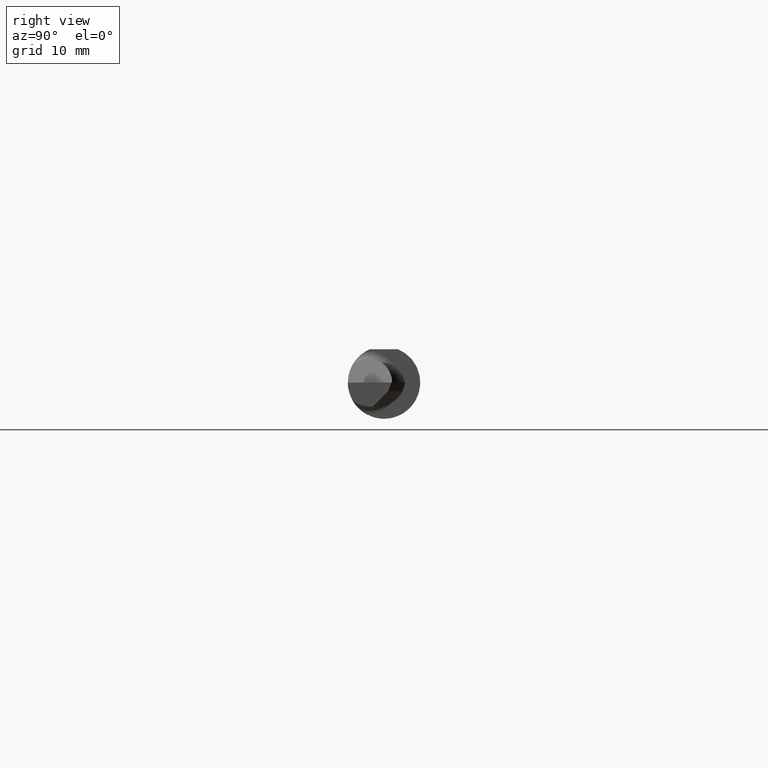
[diagram: clean part render]
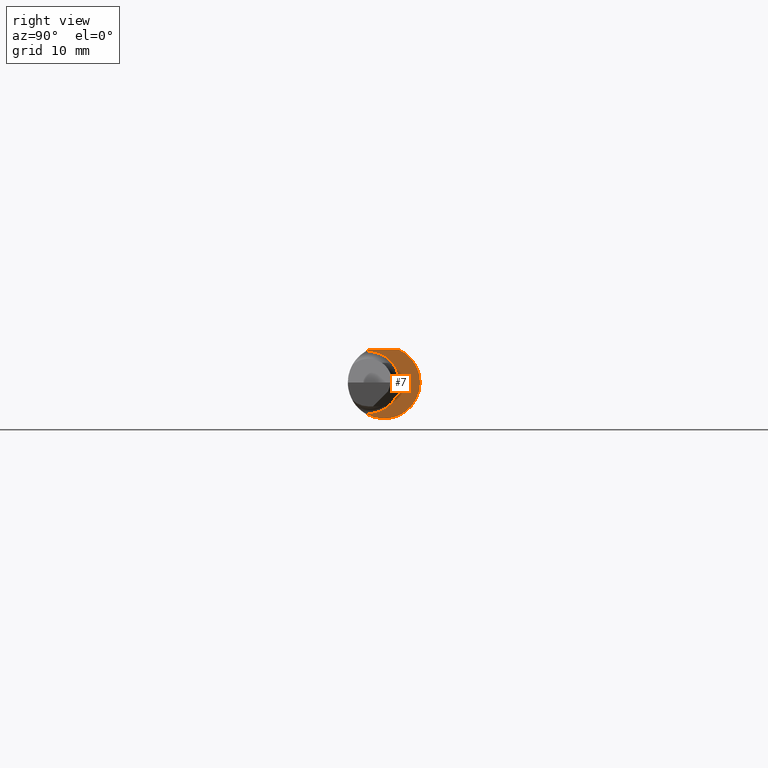
[diagram: same view with one face highlighted and labeled with its STEP entity id]
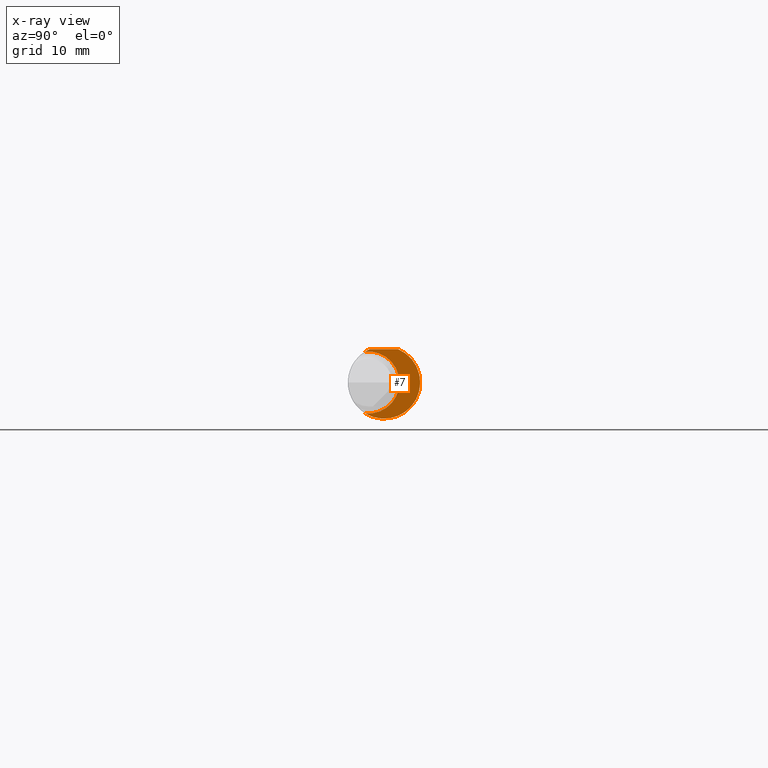
[diagram: x-ray of the same camera — body ghosted, the highlighted face saturated]
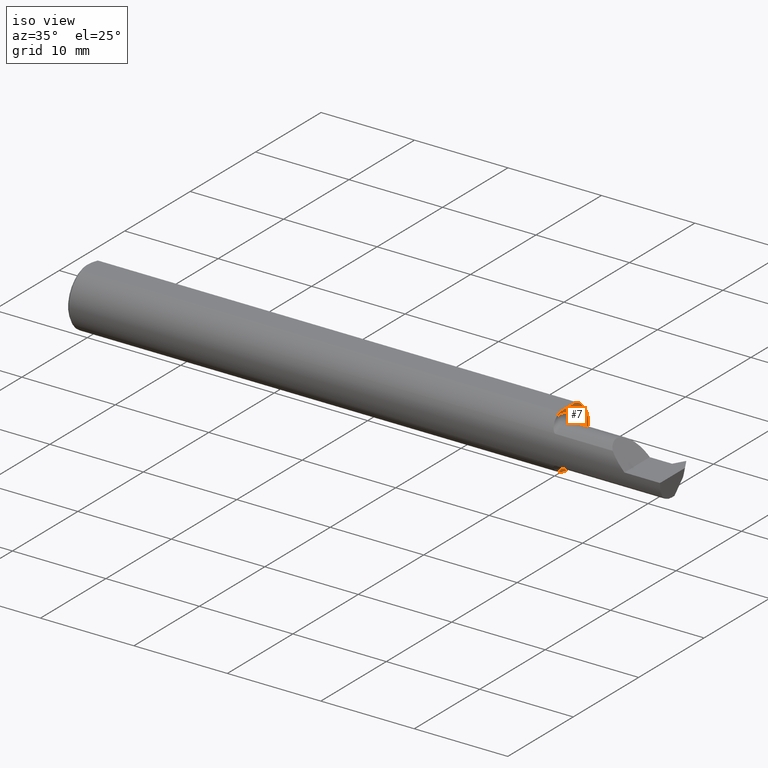
[diagram: same view with one face highlighted and labeled with its STEP entity id]
A machine part, right view. The second image highlights one B-rep face of the part: STEP entity #7.
The next image is the same camera in x-ray: the body ghosted, the highlighted face saturated — about 3% of this face is hidden behind the body in this view.
A second angle (iso view) of the same face is appended — the face is thin or edge-on in the first view.
In plain terms, the highlighted planar face has unit normal (1, 0, 0).
Its self-contained STEP definition (entity closure, byte-faithful):
#3 = CARTESIAN_POINT ( 'NONE',  ( 2.024999999999999911, 0.04895916665957469188, 0.1148499999999999521 ) ) ;
#7 = ADVANCED_FACE ( 'NONE', ( #238 ), #593, .T. ) ;
#72 = CARTESIAN_POINT ( 'NONE',  ( 2.024999999999999911, -0.06535139275765998457, 0.1063800637555461642 ) ) ;
#102 = CARTESIAN_POINT ( 'NONE',  ( 2.024999999999999911, -0.05385000000000014081, 0.000000000000000000 ) ) ;
#132 = DIRECTION ( 'NONE',  ( 0.000000000000000000, 1.000000000000000000, 0.000000000000000000 ) ) ;
#151 = EDGE_CURVE ( 'NONE', #338, #322, #688, .T. ) ;
#153 = AXIS2_PLACEMENT_3D ( 'NONE', #184, #432, #372 ) ;
#184 = CARTESIAN_POINT ( 'NONE',  ( 2.024999999999999911, 0.000000000000000000, 0.000000000000000000 ) ) ;
#191 = ORIENTED_EDGE ( 'NONE', *, *, #714, .T. ) ;
#201 = AXIS2_PLACEMENT_3D ( 'NONE', #421, #479, #229 ) ;
#209 = EDGE_CURVE ( 'NONE', #501, #279, #681, .T. ) ;
#229 = DIRECTION ( 'NONE',  ( -1.860231797550329354E-16, 1.000000000000000000, 0.000000000000000000 ) ) ;
#238 = FACE_OUTER_BOUND ( 'NONE', #629, .T. ) ;
#239 = EDGE_CURVE ( 'NONE', #501, #338, #293, .T. ) ;
#258 = ORIENTED_EDGE ( 'NONE', *, *, #209, .F. ) ;
#279 = VERTEX_POINT ( 'NONE', #3 ) ;
#293 = CIRCLE ( 'NONE', #327, 0.1248500000000000026 ) ;
#310 = DIRECTION ( 'NONE',  ( 1.000000000000000000, 1.860231797550329107E-16, 0.000000000000000000 ) ) ;
#322 = VERTEX_POINT ( 'NONE', #702 ) ;
#327 = AXIS2_PLACEMENT_3D ( 'NONE', #434, #310, #132 ) ;
#338 = VERTEX_POINT ( 'NONE', #72 ) ;
#372 = DIRECTION ( 'NONE',  ( 0.000000000000000000, 1.000000000000000000, 0.000000000000000000 ) ) ;
#421 = CARTESIAN_POINT ( 'NONE',  ( 2.024999999999999911, 0.1248499999999999471, 0.000000000000000000 ) ) ;
#425 = CARTESIAN_POINT ( 'NONE',  ( 2.024999999999999911, 0.1248499999999998639, 0.1148499999999999521 ) ) ;
#432 = DIRECTION ( 'NONE',  ( 1.000000000000000000, 1.860231797550329107E-16, 0.000000000000000000 ) ) ;
#434 = CARTESIAN_POINT ( 'NONE',  ( 2.024999999999999911, 0.000000000000000000, 0.000000000000000000 ) ) ;
#459 = CIRCLE ( 'NONE', #153, 0.1248500000000000026 ) ;
#470 = CARTESIAN_POINT ( 'NONE',  ( 2.024999999999999911, -0.04895916665957478209, 0.1148499999999999521 ) ) ;
#479 = DIRECTION ( 'NONE',  ( 1.000000000000000000, 1.860231797550329354E-16, 0.000000000000000000 ) ) ;
#501 = VERTEX_POINT ( 'NONE', #470 ) ;
#593 = PLANE ( 'NONE',  #201 ) ;
#611 = DIRECTION ( 'NONE',  ( 0.000000000000000000, -1.000000000000000000, 0.000000000000000000 ) ) ;
#613 = VECTOR ( 'NONE', #672, 39.37007874015748143 ) ;
#629 = EDGE_LOOP ( 'NONE', ( #191, #258, #651, #780 ) ) ;
#651 = ORIENTED_EDGE ( 'NONE', *, *, #239, .T. ) ;
#672 = DIRECTION ( 'NONE',  ( -1.860231797550329354E-16, 1.000000000000000000, 0.000000000000000000 ) ) ;
#681 = LINE ( 'NONE', #425, #613 ) ;
#688 = CIRCLE ( 'NONE', #750, 0.1070000000000000812 ) ;
#702 = CARTESIAN_POINT ( 'NONE',  ( 2.024999999999999911, -0.06535139275765998457, -0.1063800637555461642 ) ) ;
#714 = EDGE_CURVE ( 'NONE', #322, #279, #459, .T. ) ;
#739 = DIRECTION ( 'NONE',  ( -1.000000000000000000, -1.860231797550329107E-16, -0.000000000000000000 ) ) ;
#750 = AXIS2_PLACEMENT_3D ( 'NONE', #102, #739, #611 ) ;
#780 = ORIENTED_EDGE ( 'NONE', *, *, #151, .T. ) ;